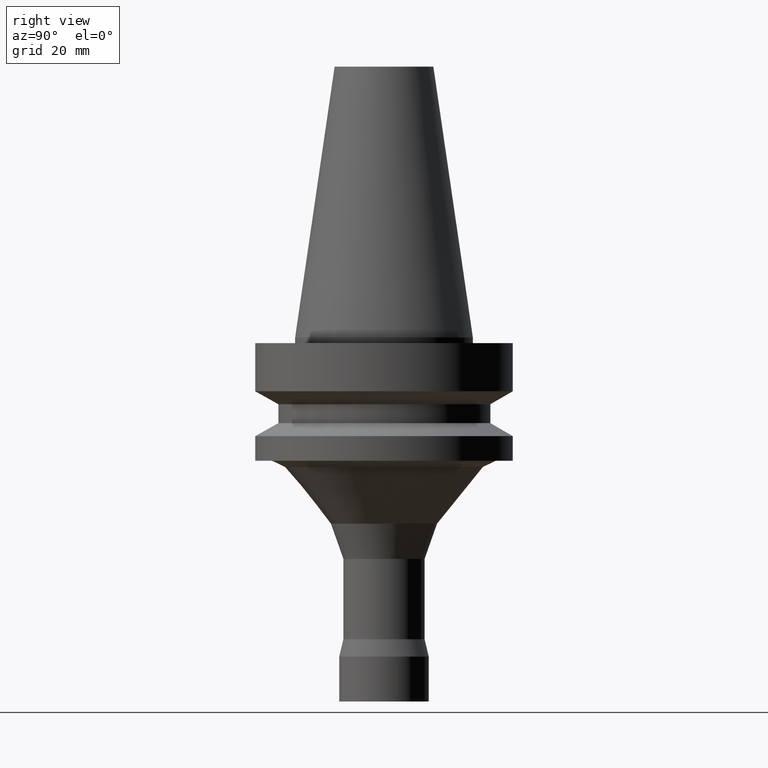
[diagram: clean part render]
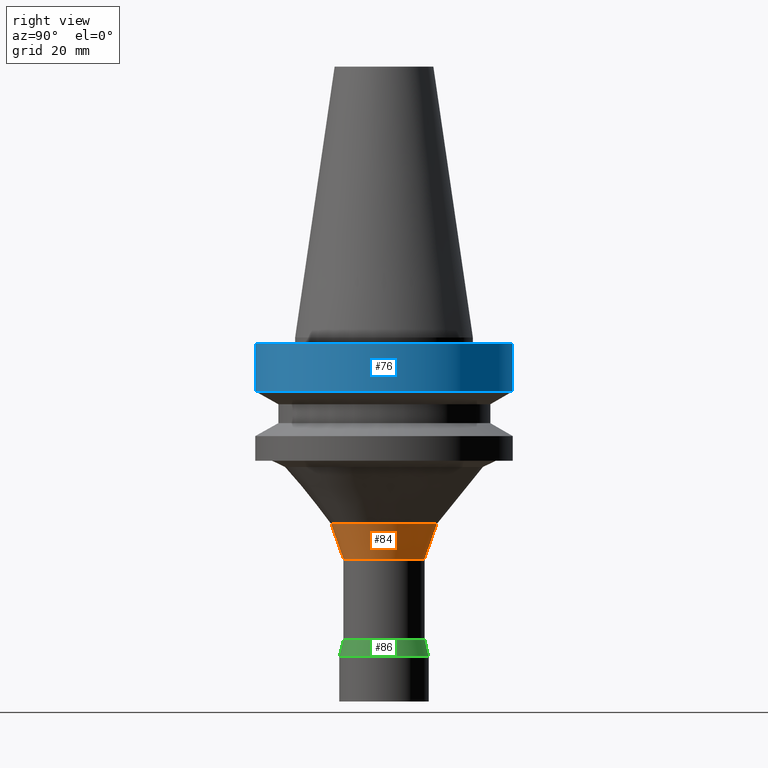
[diagram: same view with three faces highlighted in distinct colors, each labeled with its STEP entity id]
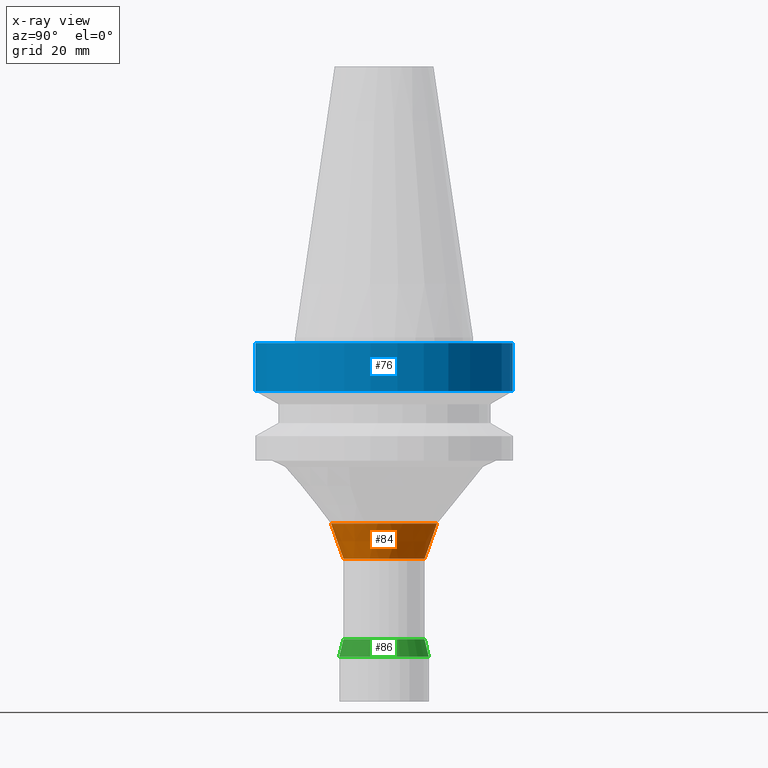
[diagram: x-ray of the same camera — body ghosted, the three highlighted faces saturated]
A machine part, right view with three faces highlighted in distinct colors.
The next image is the same camera in x-ray (body ghosted, the three faces saturated) — at least one of them is partly hidden behind the body in this view.
Their STEP definitions:

[orange] entity #84 — the highlighted conical surface has half-angle 19.476 deg.
#84=ADVANCED_FACE('',(#120,#121),#122,.T.);
#120=FACE_BOUND('',#169,.T.);
#121=FACE_BOUND('',#170,.T.);
#122=CONICAL_SURFACE('',#171,8.36162965424102,0.339919400355711);
#169=EDGE_LOOP('',(#236));
#170=EDGE_LOOP('',(#237));
#171=AXIS2_PLACEMENT_3D('',#238,#239,#240);
#236=ORIENTED_EDGE('',*,*,#284,.F.);
#237=ORIENTED_EDGE('',*,*,#283,.T.);
#238=CARTESIAN_POINT('',(2.22843611606446E-015,4.45687223212892E-015,-36.3931235947538));
#239=DIRECTION('',(-6.12323399573677E-017,-1.22464679914735E-016,1.0));
#240=DIRECTION('',(-1.23259516440783E-032,1.0,1.22464679914735E-016));
#283=EDGE_CURVE('',#308,#308,#309,.T.);
#284=EDGE_CURVE('',#310,#310,#311,.T.);
#308=VERTEX_POINT('',#340);
#309=CIRCLE('',#341,9.47325930848204);
#310=VERTEX_POINT('',#342);
#311=CIRCLE('',#343,7.25);
#340=CARTESIAN_POINT('',(2.03596215268267E-015,9.47325930848204,-33.2497852295076));
#341=AXIS2_PLACEMENT_3D('',#381,#382,#383);
#342=CARTESIAN_POINT('',(2.42091007944625E-015,7.25,-39.53646196));
#343=AXIS2_PLACEMENT_3D('',#384,#385,#386);
#381=CARTESIAN_POINT('',(2.03596215268267E-015,4.07192430536534E-015,-33.2497852295076));
#382=DIRECTION('',(6.12323399573676E-017,1.22464679914735E-016,-1.0));
#383=DIRECTION('',(-1.23259516440783E-032,1.0,1.22464679914735E-016));
#384=CARTESIAN_POINT('',(2.42091007944625E-015,4.84182015889251E-015,-39.53646196));
#385=DIRECTION('',(6.12323399573677E-017,1.22464679914735E-016,-1.0));
#386=DIRECTION('',(-1.23259516440783E-032,1.0,1.22464679914735E-016));

[blue] entity #76 — the highlighted cylindrical surface (bore or boss wall) has radius 23 mm, axis along (-0, -0, 1).
#76=ADVANCED_FACE('',(#96,#97),#98,.T.);
#96=FACE_BOUND('',#145,.T.);
#97=FACE_BOUND('',#146,.T.);
#98=CYLINDRICAL_SURFACE('',#147,23.0);
#145=EDGE_LOOP('',(#196));
#146=EDGE_LOOP('',(#197));
#147=AXIS2_PLACEMENT_3D('',#198,#199,#200);
#196=ORIENTED_EDGE('',*,*,#276,.F.);
#197=ORIENTED_EDGE('',*,*,#274,.T.);
#198=CARTESIAN_POINT('',(3.24531401774049E-016,6.49062803548097E-016,-5.3));
#199=DIRECTION('',(-6.12323399573677E-017,-1.22464679914735E-016,1.0));
#200=DIRECTION('',(-1.23259516440783E-032,1.0,1.22464679914735E-016));
#274=EDGE_CURVE('',#290,#290,#291,.T.);
#276=EDGE_CURVE('',#294,#294,#295,.T.);
#290=VERTEX_POINT('',#322);
#291=CIRCLE('',#323,23.0);
#294=VERTEX_POINT('',#326);
#295=CIRCLE('',#327,23.0);
#322=CARTESIAN_POINT('',(6.12323399573674E-017,23.0,-0.999999999999997));
#323=AXIS2_PLACEMENT_3D('',#354,#355,#356);
#326=CARTESIAN_POINT('',(5.87830463590729E-016,23.0,-9.6));
#327=AXIS2_PLACEMENT_3D('',#360,#361,#362);
#354=CARTESIAN_POINT('',(6.12323399573677E-017,1.22464679914735E-016,-1.0));
#355=DIRECTION('',(6.12323399573677E-017,1.22464679914735E-016,-1.0));
#356=DIRECTION('',(-1.23259516440783E-032,1.0,1.22464679914735E-016));
#360=CARTESIAN_POINT('',(5.8783046359073E-016,1.17566092718146E-015,-9.6));
#361=DIRECTION('',(6.12323399573677E-017,1.22464679914735E-016,-1.0));
#362=DIRECTION('',(-1.23259516440783E-032,1.0,1.22464679914735E-016));

[green] entity #86 — the highlighted conical surface has half-angle 13.546 deg.
#86=ADVANCED_FACE('',(#126,#127),#128,.T.);
#126=FACE_BOUND('',#175,.T.);
#127=FACE_BOUND('',#176,.T.);
#128=CONICAL_SURFACE('',#177,7.625,0.236426045442767);
#175=EDGE_LOOP('',(#246));
#176=EDGE_LOOP('',(#247));
#177=AXIS2_PLACEMENT_3D('',#248,#249,#250);
#246=ORIENTED_EDGE('',*,*,#286,.F.);
#247=ORIENTED_EDGE('',*,*,#285,.T.);
#248=CARTESIAN_POINT('',(3.3949379536313E-015,6.78987590726259E-015,-55.44354431));
#249=DIRECTION('',(6.12323399573677E-017,1.22464679914735E-016,-1.0));
#250=DIRECTION('',(-1.23259516440783E-032,1.0,1.22464679914735E-016));
#285=EDGE_CURVE('',#312,#312,#313,.T.);
#286=EDGE_CURVE('',#314,#314,#315,.T.);
#312=VERTEX_POINT('',#344);
#313=CIRCLE('',#345,7.25);
#314=VERTEX_POINT('',#346);
#315=CIRCLE('',#347,8.0);
#344=CARTESIAN_POINT('',(3.29963252969264E-015,7.25000000000001,-53.88708862));
#345=AXIS2_PLACEMENT_3D('',#387,#388,#389);
#346=CARTESIAN_POINT('',(3.49024337756996E-015,8.00000000000001,-57.0));
#347=AXIS2_PLACEMENT_3D('',#390,#391,#392);
#387=CARTESIAN_POINT('',(3.29963252969264E-015,6.59926505938528E-015,-53.88708862));
#388=DIRECTION('',(6.12323399573677E-017,1.22464679914735E-016,-1.0));
#389=DIRECTION('',(-1.23259516440783E-032,1.0,1.22464679914735E-016));
#390=CARTESIAN_POINT('',(3.49024337756996E-015,6.98048675513991E-015,-57.0));
#391=DIRECTION('',(6.12323399573677E-017,1.22464679914735E-016,-1.0));
#392=DIRECTION('',(-1.23259516440783E-032,1.0,1.22464679914735E-016));